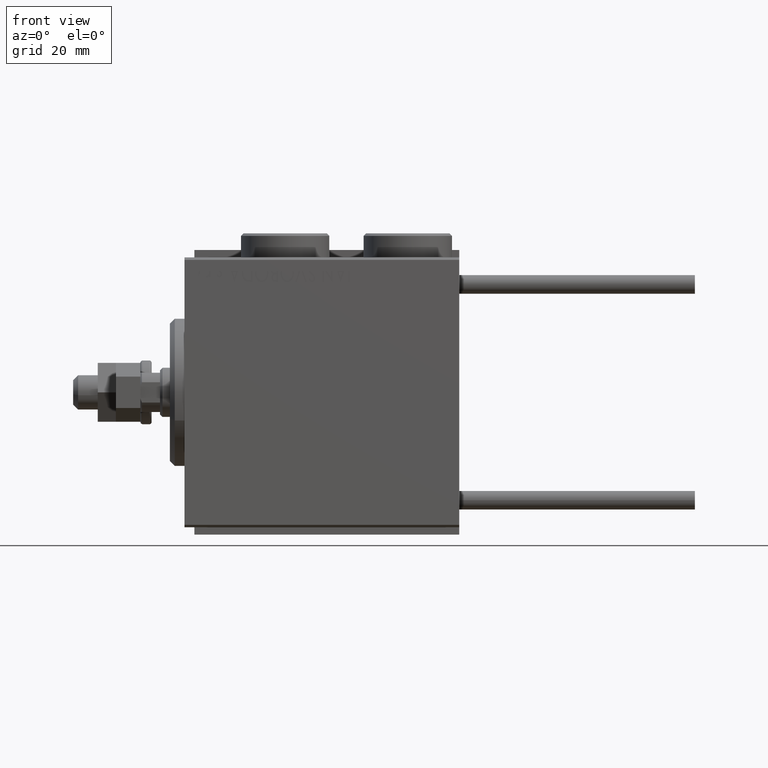
[diagram: clean part render]
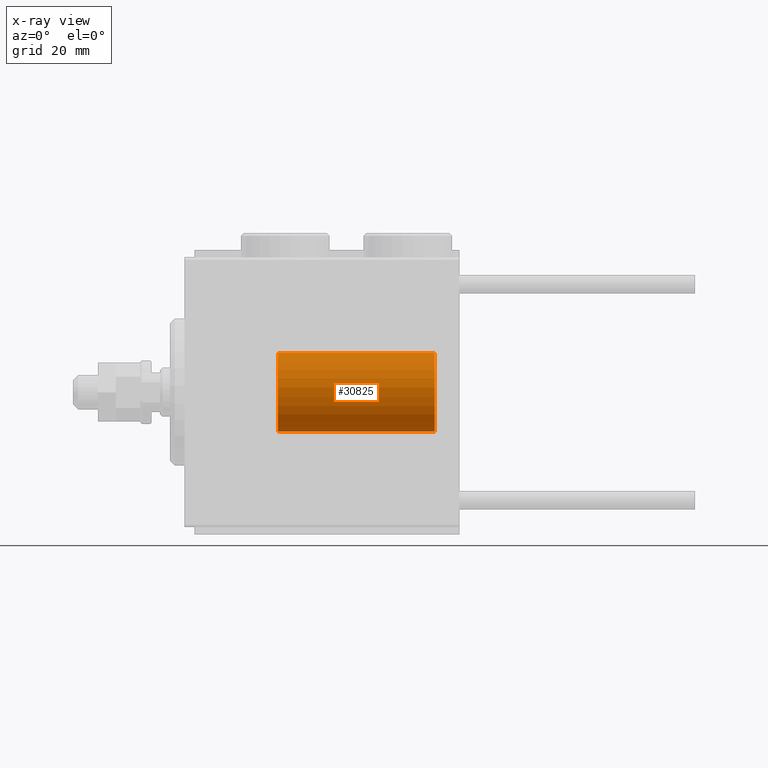
[diagram: x-ray — body ghosted, one internal face saturated and labeled with its STEP entity id]
A machine part, front view, then the same camera in x-ray: the body is ghosted and one INTERNAL B-rep face — a face not visible from any outside direction — is saturated and labeled: STEP entity #30825.
In plain terms, the highlighted cylindrical surface (partial cylindrical patch) has radius 8 mm, axis along (1, -0, -0).
Its self-contained STEP definition (entity closure, byte-faithful):
#326 = DIRECTION ( 'NONE',  ( 0.000000000000000000, 0.000000000000000000, 1.000000000000000000 ) ) ;
#2136 = VERTEX_POINT ( 'NONE', #17565 ) ;
#2397 = FACE_OUTER_BOUND ( 'NONE', #42928, .T. ) ;
#2957 = AXIS2_PLACEMENT_3D ( 'NONE', #14114, #45912, #42242 ) ;
#3964 = CARTESIAN_POINT ( 'NONE',  ( -8.000000000000000000, 0.000000000000000000, 0.000000000000000000 ) ) ;
#4517 = DIRECTION ( 'NONE',  ( 1.000000000000000000, 0.000000000000000000, 0.000000000000000000 ) ) ;
#4916 = AXIS2_PLACEMENT_3D ( 'NONE', #36032, #326, #4517 ) ;
#5604 = ORIENTED_EDGE ( 'NONE', *, *, #48650, .F. ) ;
#6199 = CARTESIAN_POINT ( 'NONE',  ( -8.000000000000000000, 0.000000000000000000, 32.00000000000000000 ) ) ;
#6717 = LINE ( 'NONE', #6199, #22853 ) ;
#6942 = VERTEX_POINT ( 'NONE', #50145 ) ;
#9835 = EDGE_CURVE ( 'NONE', #33095, #22695, #13232, .T. ) ;
#12586 = ORIENTED_EDGE ( 'NONE', *, *, #33986, .F. ) ;
#13232 = CIRCLE ( 'NONE', #4916, 8.000000000000000000 ) ;
#14114 = CARTESIAN_POINT ( 'NONE',  ( 0.000000000000000000, 0.000000000000000000, 32.00000000000000000 ) ) ;
#14248 = DIRECTION ( 'NONE',  ( -0.000000000000000000, -0.000000000000000000, -1.000000000000000000 ) ) ;
#17565 = CARTESIAN_POINT ( 'NONE',  ( -8.000000000000000000, 0.000000000000000000, 32.00000000000000000 ) ) ;
#18713 = AXIS2_PLACEMENT_3D ( 'NONE', #29981, #48321, #32158 ) ;
#19076 = CARTESIAN_POINT ( 'NONE',  ( 8.000000000000000000, 9.797174393178825657E-16, 0.000000000000000000 ) ) ;
#21490 = ORIENTED_EDGE ( 'NONE', *, *, #33522, .T. ) ;
#22695 = VERTEX_POINT ( 'NONE', #19076 ) ;
#22853 = VECTOR ( 'NONE', #14248, 1000.000000000000000 ) ;
#23084 = ORIENTED_EDGE ( 'NONE', *, *, #9835, .T. ) ;
#29981 = CARTESIAN_POINT ( 'NONE',  ( 0.000000000000000000, 0.000000000000000000, 32.00000000000000000 ) ) ;
#30825 = ADVANCED_FACE ( 'NONE', ( #2397 ), #38342, .T. ) ;
#32158 = DIRECTION ( 'NONE',  ( 1.000000000000000000, 0.000000000000000000, 0.000000000000000000 ) ) ;
#33095 = VERTEX_POINT ( 'NONE', #3964 ) ;
#33522 = EDGE_CURVE ( 'NONE', #2136, #33095, #6717, .T. ) ;
#33986 = EDGE_CURVE ( 'NONE', #2136, #6942, #43674, .T. ) ;
#34264 = CARTESIAN_POINT ( 'NONE',  ( 8.000000000000000000, 9.797174393178825657E-16, 32.00000000000000000 ) ) ;
#36032 = CARTESIAN_POINT ( 'NONE',  ( 0.000000000000000000, 0.000000000000000000, 0.000000000000000000 ) ) ;
#37905 = LINE ( 'NONE', #34264, #39900 ) ;
#38342 = CYLINDRICAL_SURFACE ( 'NONE', #2957, 8.000000000000000000 ) ;
#39900 = VECTOR ( 'NONE', #41817, 1000.000000000000000 ) ;
#41817 = DIRECTION ( 'NONE',  ( -0.000000000000000000, -0.000000000000000000, -1.000000000000000000 ) ) ;
#42242 = DIRECTION ( 'NONE',  ( -1.000000000000000000, 0.000000000000000000, 0.000000000000000000 ) ) ;
#42928 = EDGE_LOOP ( 'NONE', ( #5604, #12586, #21490, #23084 ) ) ;
#43674 = CIRCLE ( 'NONE', #18713, 8.000000000000000000 ) ;
#45912 = DIRECTION ( 'NONE',  ( -0.000000000000000000, -0.000000000000000000, -1.000000000000000000 ) ) ;
#48321 = DIRECTION ( 'NONE',  ( 0.000000000000000000, 0.000000000000000000, 1.000000000000000000 ) ) ;
#48650 = EDGE_CURVE ( 'NONE', #6942, #22695, #37905, .T. ) ;
#50145 = CARTESIAN_POINT ( 'NONE',  ( 8.000000000000000000, 9.797174393178825657E-16, 32.00000000000000000 ) ) ;